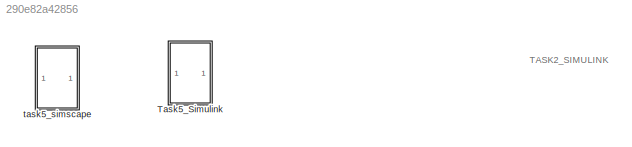
MODEL slx_290e82a42856
KIND model
CONFIG AbsTol = auto
CONFIG EnableMultiTasking = off
CONFIG FixedStep = auto
CONFIG MaxStep = auto
CONFIG MinStep = auto
CONFIG RelTol = 1e-3
CONFIG SampleTimeConstraint = Unconstrained
CONFIG SolverName = VariableStepAuto
CONFIG StartTime = 0.0
CONFIG StopTime = 10
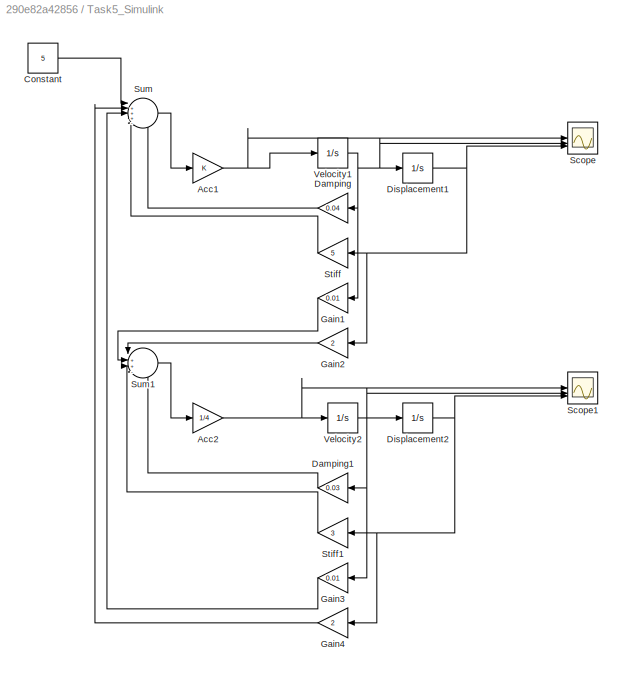
BLOCK [SubSystem] Task5_Simulink
  Commented = on
BLOCK [Gain] Task5_Simulink/Acc1
BLOCK [Gain] Task5_Simulink/Acc2
  Gain = 1/4
BLOCK [Constant] Task5_Simulink/Constant
  Value = 5
BLOCK [Gain] Task5_Simulink/Damping
  Gain = 0.04
  NameLocation = top
BLOCK [Gain] Task5_Simulink/Damping1
  Gain = 0.03
  NameLocation = top
BLOCK [Integrator] Task5_Simulink/Displacement1
BLOCK [Integrator] Task5_Simulink/Displacement2
BLOCK [Gain] Task5_Simulink/Gain1
  Gain = 0.01
  NameLocation = top
BLOCK [Gain] Task5_Simulink/Gain2
  Gain = 2
  NameLocation = top
BLOCK [Gain] Task5_Simulink/Gain3
  Gain = 0.01
  NameLocation = top
BLOCK [Gain] Task5_Simulink/Gain4
  Gain = 2
  NameLocation = top
BLOCK [Scope] Task5_Simulink/Scope
  Floating = off
  NumInputPorts = 3
  ScopeSpecificationString = Simulink.scopes.TimeScopeBlockCfg('CurrentConfiguration', extmgr.ConfigurationSet(extmgr.Configuration('Core','General UI',true),extmgr.Configuration('Core','Source UI',true),extmgr.Configuration('Sources','WiredSimulink',true),extmgr.Configuration('Visuals','Time Domain',true,'SerializedDisplays',{struct('MinYLimReal','-5.79732','MaxYLimReal','6.1997','YLabelReal','','MinYLimMag','0.00000','MaxYL...<+2977ch>
BLOCK [Scope] Task5_Simulink/Scope1
  Floating = off
  NumInputPorts = 3
  ScopeSpecificationString = Simulink.scopes.TimeScopeBlockCfg('CurrentConfiguration', extmgr.ConfigurationSet(extmgr.Configuration('Core','General UI',true),extmgr.Configuration('Core','Source UI',true),extmgr.Configuration('Sources','WiredSimulink',true,'DataLoggingVariableName','ScopeData1'),extmgr.Configuration('Visuals','Time Domain',true,'SerializedDisplays',{struct('MinYLimReal','-1.0334','MaxYLimReal','1.05071','YLabe...<+4008ch>
BLOCK [Gain] Task5_Simulink/Stiff
  Gain = 5
  NameLocation = top
BLOCK [Gain] Task5_Simulink/Stiff1
  Gain = 3
  NameLocation = top
BLOCK [Sum] Task5_Simulink/Sum
  Inputs = |+++--
BLOCK [Sum] Task5_Simulink/Sum1
  Inputs = |++--
BLOCK [Integrator] Task5_Simulink/Velocity1
BLOCK [Integrator] Task5_Simulink/Velocity2
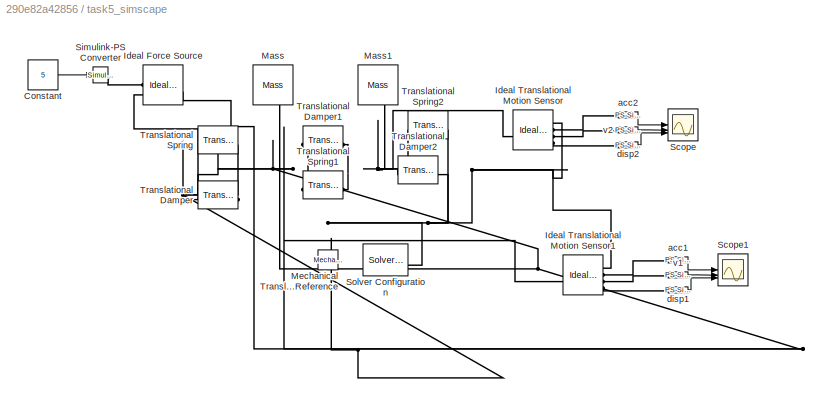
BLOCK [SubSystem] task5_simscape
BLOCK [Constant] task5_simscape/Constant
  Value = 5
BLOCK [Reference] task5_simscape/Ideal Force Source  REF=fl_lib/Mechanical/Mechanical Sources/Ideal Force Source
  SourceBlock = fl_lib/Mechanical/Mechanical Sources/Ideal Force Source
  SourceType = Ideal Force Source
BLOCK [Reference] task5_simscape/Ideal Translational Motion Sensor  REF=fl_lib/Mechanical/Mechanical Sensors/Ideal Translational
Motion Sensor
  SourceBlock = fl_lib/Mechanical/Mechanical Sensors/Ideal Translational\nMotion Sensor
  SourceType = Ideal Translational\nMotion Sensor
BLOCK [Reference] task5_simscape/Ideal Translational Motion Sensor1  REF=fl_lib/Mechanical/Mechanical Sensors/Ideal Translational
Motion Sensor
  SourceBlock = fl_lib/Mechanical/Mechanical Sensors/Ideal Translational\nMotion Sensor
  SourceType = Ideal Translational\nMotion Sensor
BLOCK [Reference] task5_simscape/Mass  REF=fl_lib/Mechanical/Translational
Elements/Mass
  NameLocation = top
  SourceBlock = fl_lib/Mechanical/Translational\nElements/Mass
  SourceType = Mass
BLOCK [Reference] task5_simscape/Mass1  REF=fl_lib/Mechanical/Translational
Elements/Mass
  NameLocation = top
  SourceBlock = fl_lib/Mechanical/Translational\nElements/Mass
  SourceType = Mass
BLOCK [Reference] task5_simscape/Mechanical Translational Reference  REF=fl_lib/Mechanical/Translational
Elements/Mechanical
Translational
Reference
  NameLocation = right
  SourceBlock = fl_lib/Mechanical/Translational\nElements/Mechanical\nTranslational\nReference
  SourceType = Mechanical\nTranslational\nReference
BLOCK [Scope] task5_simscape/Scope
  Floating = off
  NumInputPorts = 3
  ScopeSpecificationString = Simulink.scopes.TimeScopeBlockCfg('CurrentConfiguration', extmgr.ConfigurationSet(extmgr.Configuration('Core','General UI',true),extmgr.Configuration('Core','Source UI',true),extmgr.Configuration('Sources','WiredSimulink',true,'DataLoggingVariableName','ScopeData1'),extmgr.Configuration('Visuals','Time Domain',true,'SerializedDisplays',{struct('MinYLimReal','-1.0185','MaxYLimReal','1.02876','YLabe...<+3028ch>
BLOCK [Scope] task5_simscape/Scope1
  Floating = off
  NumInputPorts = 3
  ScopeSpecificationString = Simulink.scopes.TimeScopeBlockCfg('CurrentConfiguration', extmgr.ConfigurationSet(extmgr.Configuration('Core','General UI',true),extmgr.Configuration('Core','Source UI',true),extmgr.Configuration('Sources','WiredSimulink',true,'DataLoggingVariableName','ScopeData1'),extmgr.Configuration('Visuals','Time Domain',true,'SerializedDisplays',{struct('MinYLimReal','-5.68411','MaxYLimReal','6.18712','YLab...<+3023ch>
BLOCK [Reference] task5_simscape/Simulink-PS Converter  REF=nesl_utility/Simulink-PS
Converter
  SourceBlock = nesl_utility/Simulink-PS\nConverter
  SourceType = Simulink-PS\nConverter
BLOCK [Reference] task5_simscape/Solver Configuration  REF=nesl_utility/Solver
Configuration
  SourceBlock = nesl_utility/Solver\nConfiguration
  SourceType = Solver\nConfiguration
BLOCK [Reference] task5_simscape/Translational Damper  REF=fl_lib/Mechanical/Translational
Elements/Translational Damper
  SourceBlock = fl_lib/Mechanical/Translational\nElements/Translational Damper
  SourceType = Translational Damper
BLOCK [Reference] task5_simscape/Translational Damper1  REF=fl_lib/Mechanical/Translational
Elements/Translational Damper
  SourceBlock = fl_lib/Mechanical/Translational\nElements/Translational Damper
  SourceType = Translational Damper
BLOCK [Reference] task5_simscape/Translational Damper2  REF=fl_lib/Mechanical/Translational
Elements/Translational Damper
  SourceBlock = fl_lib/Mechanical/Translational\nElements/Translational Damper
  SourceType = Translational Damper
BLOCK [Reference] task5_simscape/Translational Spring  REF=fl_lib/Mechanical/Translational
Elements/Translational Spring
  NameLocation = top
  SourceBlock = fl_lib/Mechanical/Translational\nElements/Translational Spring
  SourceType = Translational Spring
BLOCK [Reference] task5_simscape/Translational Spring1  REF=fl_lib/Mechanical/Translational
Elements/Translational Spring
  SourceBlock = fl_lib/Mechanical/Translational\nElements/Translational Spring
  SourceType = Translational Spring
BLOCK [Reference] task5_simscape/Translational Spring2  REF=fl_lib/Mechanical/Translational
Elements/Translational Spring
  SourceBlock = fl_lib/Mechanical/Translational\nElements/Translational Spring
  SourceType = Translational Spring
BLOCK [Reference] task5_simscape/acc1  REF=nesl_utility/PS-Simulink
Converter
  SourceBlock = nesl_utility/PS-Simulink\nConverter
  SourceType = PS-Simulink\nConverter
BLOCK [Reference] task5_simscape/acc2  REF=nesl_utility/PS-Simulink
Converter
  SourceBlock = nesl_utility/PS-Simulink\nConverter
  SourceType = PS-Simulink\nConverter
BLOCK [Reference] task5_simscape/disp1  REF=nesl_utility/PS-Simulink
Converter
  SourceBlock = nesl_utility/PS-Simulink\nConverter
  SourceType = PS-Simulink\nConverter
BLOCK [Reference] task5_simscape/disp2  REF=nesl_utility/PS-Simulink
Converter
  SourceBlock = nesl_utility/PS-Simulink\nConverter
  SourceType = PS-Simulink\nConverter
BLOCK [Reference] task5_simscape/v1  REF=nesl_utility/PS-Simulink
Converter
  SourceBlock = nesl_utility/PS-Simulink\nConverter
  SourceType = PS-Simulink\nConverter
BLOCK [Reference] task5_simscape/v2  REF=nesl_utility/PS-Simulink
Converter
  SourceBlock = nesl_utility/PS-Simulink\nConverter
  SourceType = PS-Simulink\nConverter
ANNOTATION (root): TASK2_SIMULINK
NET Task5_Simulink/Acc1:1 -> Task5_Simulink/Scope:1, Task5_Simulink/Velocity1:1
NET Task5_Simulink/Acc2:1 -> Task5_Simulink/Scope1:1, Task5_Simulink/Velocity2:1
LINE Task5_Simulink/Constant:1 -> Task5_Simulink/Sum:1
LINE Task5_Simulink/Damping1:1 -> Task5_Simulink/Sum1:4
LINE Task5_Simulink/Damping:1 -> Task5_Simulink/Sum:5
NET Task5_Simulink/Displacement1:1 -> Task5_Simulink/Gain2:1, Task5_Simulink/Scope:3, Task5_Simulink/Stiff:1
NET Task5_Simulink/Displacement2:1 -> Task5_Simulink/Gain4:1, Task5_Simulink/Scope1:3, Task5_Simulink/Stiff1:1
LINE Task5_Simulink/Gain1:1 -> Task5_Simulink/Sum1:2
LINE Task5_Simulink/Gain2:1 -> Task5_Simulink/Sum1:1
LINE Task5_Simulink/Gain3:1 -> Task5_Simulink/Sum:3
LINE Task5_Simulink/Gain4:1 -> Task5_Simulink/Sum:2
LINE Task5_Simulink/Stiff1:1 -> Task5_Simulink/Sum1:3
LINE Task5_Simulink/Stiff:1 -> Task5_Simulink/Sum:4
LINE Task5_Simulink/Sum1:1 -> Task5_Simulink/Acc2:1
LINE Task5_Simulink/Sum:1 -> Task5_Simulink/Acc1:1
NET Task5_Simulink/Velocity1:1 -> Task5_Simulink/Damping:1, Task5_Simulink/Displacement1:1, Task5_Simulink/Gain1:1, Task5_Simulink/Scope:2
NET Task5_Simulink/Velocity2:1 -> Task5_Simulink/Damping1:1, Task5_Simulink/Displacement2:1, Task5_Simulink/Gain3:1, Task5_Simulink/Scope1:2
LINE task5_simscape/Constant:1 -> task5_simscape/Simulink-PS Converter:1
LINE task5_simscape/acc1:1 -> task5_simscape/Scope1:1
LINE task5_simscape/acc2:1 -> task5_simscape/Scope:1
LINE task5_simscape/disp1:1 -> task5_simscape/Scope1:3
LINE task5_simscape/disp2:1 -> task5_simscape/Scope:3
LINE task5_simscape/v1:1 -> task5_simscape/Scope1:2
LINE task5_simscape/v2:1 -> task5_simscape/Scope:2
PNET net1: task5_simscape/Ideal Force Source:LConn1 -- task5_simscape/Ideal Translational Motion Sensor1:LConn1 -- task5_simscape/Mass:LConn1 -- task5_simscape/Translational Damper1:LConn1 -- task5_simscape/Translational Damper:LConn1 -- task5_simscape/Translational Spring1:LConn1 -- task5_simscape/Translational Spring:LConn1
PLINE task5_simscape/Ideal Force Source:RConn1 -- task5_simscape/Simulink-PS Converter:RConn1
PNET net2: task5_simscape/Ideal Force Source:RConn2 -- task5_simscape/Ideal Translational Motion Sensor1:RConn1 -- task5_simscape/Ideal Translational Motion Sensor:RConn1 -- task5_simscape/Mechanical Translational Reference:LConn1 -- task5_simscape/Solver Configuration:RConn1 -- task5_simscape/Translational Damper2:RConn1 -- task5_simscape/Translational Damper:RConn1 -- task5_simscape/Translational Spring2:RConn1 -- task5_simscape/Translational Spring:RConn1
PLINE task5_simscape/Ideal Translational Motion Sensor1:RConn2 -- task5_simscape/acc1:LConn1
PLINE task5_simscape/Ideal Translational Motion Sensor1:RConn3 -- task5_simscape/v1:LConn1
PLINE task5_simscape/Ideal Translational Motion Sensor1:RConn4 -- task5_simscape/disp1:LConn1
PNET net3: task5_simscape/Ideal Translational Motion Sensor:LConn1 -- task5_simscape/Mass1:LConn1 -- task5_simscape/Translational Damper1:RConn1 -- task5_simscape/Translational Damper2:LConn1 -- task5_simscape/Translational Spring1:RConn1 -- task5_simscape/Translational Spring2:LConn1
PLINE task5_simscape/Ideal Translational Motion Sensor:RConn2 -- task5_simscape/acc2:LConn1
PLINE task5_simscape/Ideal Translational Motion Sensor:RConn3 -- task5_simscape/v2:LConn1
PLINE task5_simscape/Ideal Translational Motion Sensor:RConn4 -- task5_simscape/disp2:LConn1
note: NET lines group one-source signal fan-out (src -> all destinations, sorted); 1:1 wires keep LINE; PNET lines group multi-terminal physical nets as a canonical sorted terminal list (undirected conserving connections); 2-terminal nets keep the pairwise PLINE form
